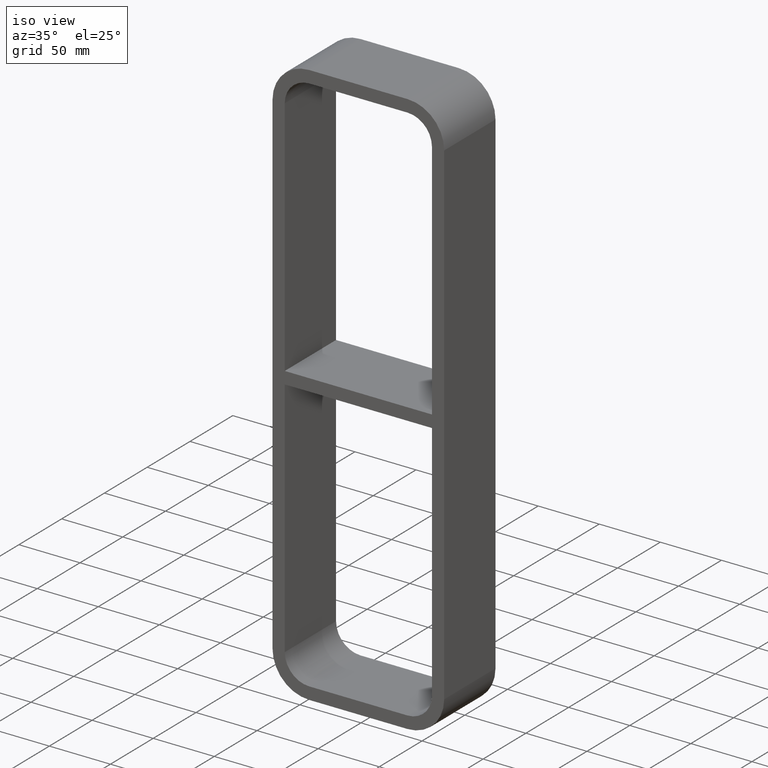
[diagram: clean part render]
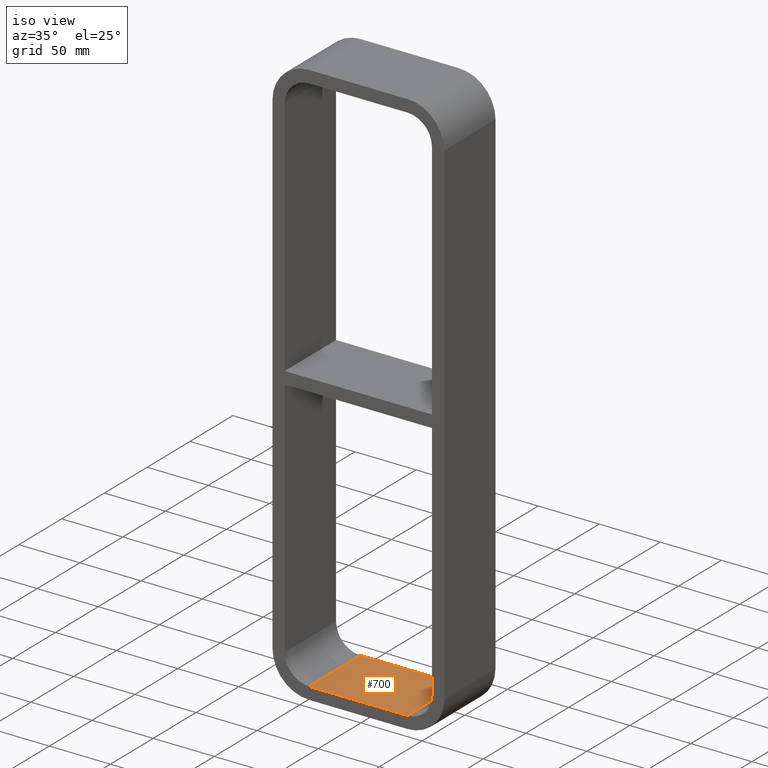
[diagram: same view with one face highlighted and labeled with its STEP entity id]
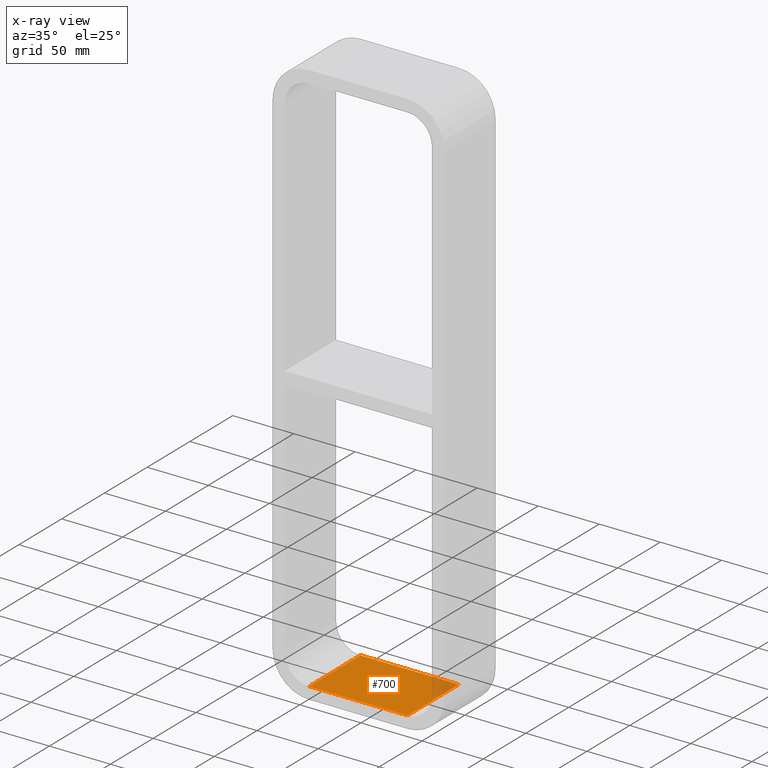
[diagram: x-ray of the same camera — body ghosted, the highlighted face saturated]
A machine part, iso view. The second image highlights one B-rep face of the part: STEP entity #700.
The next image is the same camera in x-ray: the body ghosted, the highlighted face saturated — about 7% of this face is hidden behind the body in this view.
In plain terms, the highlighted planar face has unit normal (0, 0, -1).
Its self-contained STEP definition (entity closure, byte-faithful):
#379=CARTESIAN_POINT('',(40.250000000000014,-3.0,-223.0));
#380=VERTEX_POINT('',#379);
#388=CARTESIAN_POINT('',(-40.25,-3.0,-223.0));
#389=VERTEX_POINT('',#388);
#390=CARTESIAN_POINT('',(40.250000000000014,-3.0,-223.0));
#391=DIRECTION('',(-1.0,0.0,0.0));
#392=VECTOR('',#391,80.500000000000028);
#393=LINE('',#390,#392);
#394=EDGE_CURVE('',#380,#389,#393,.T.);
#658=CARTESIAN_POINT('',(-40.25,57.0,-223.0));
#659=VERTEX_POINT('',#658);
#660=CARTESIAN_POINT('',(-40.25,-3.0,-223.0));
#661=DIRECTION('',(0.0,1.0,0.0));
#662=VECTOR('',#661,60.0);
#663=LINE('',#660,#662);
#664=EDGE_CURVE('',#389,#659,#663,.T.);
#677=CARTESIAN_POINT('',(60.250000000000014,0.0,-223.0));
#678=DIRECTION('',(0.0,0.0,-1.0));
#679=DIRECTION('',(-1.0,0.0,0.0));
#680=AXIS2_PLACEMENT_3D('',#677,#678,#679);
#681=PLANE('',#680);
#682=ORIENTED_EDGE('',*,*,#664,.F.);
#683=ORIENTED_EDGE('',*,*,#394,.F.);
#684=CARTESIAN_POINT('',(40.250000000000014,57.0,-223.0));
#685=VERTEX_POINT('',#684);
#686=CARTESIAN_POINT('',(40.250000000000014,57.0,-223.0));
#687=DIRECTION('',(0.0,-1.0,0.0));
#688=VECTOR('',#687,60.0);
#689=LINE('',#686,#688);
#690=EDGE_CURVE('',#685,#380,#689,.T.);
#691=ORIENTED_EDGE('',*,*,#690,.F.);
#692=CARTESIAN_POINT('',(-40.250000000000007,57.0,-223.0));
#693=DIRECTION('',(1.0,0.0,0.0));
#694=VECTOR('',#693,80.500000000000028);
#695=LINE('',#692,#694);
#696=EDGE_CURVE('',#659,#685,#695,.T.);
#697=ORIENTED_EDGE('',*,*,#696,.F.);
#698=EDGE_LOOP('',(#682,#683,#691,#697));
#699=FACE_OUTER_BOUND('',#698,.T.);
#700=ADVANCED_FACE('',(#699),#681,.F.);